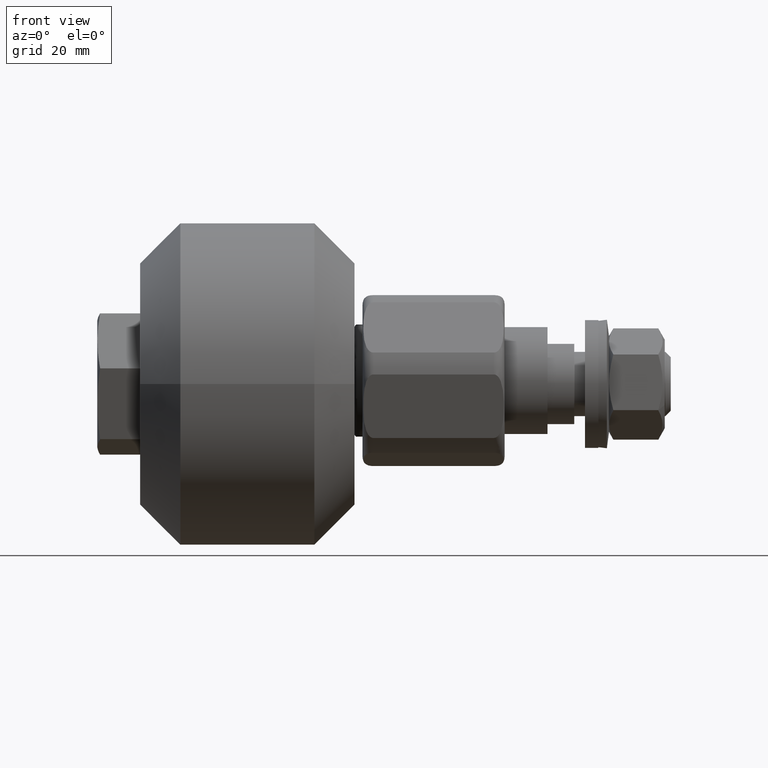
[diagram: clean part render]
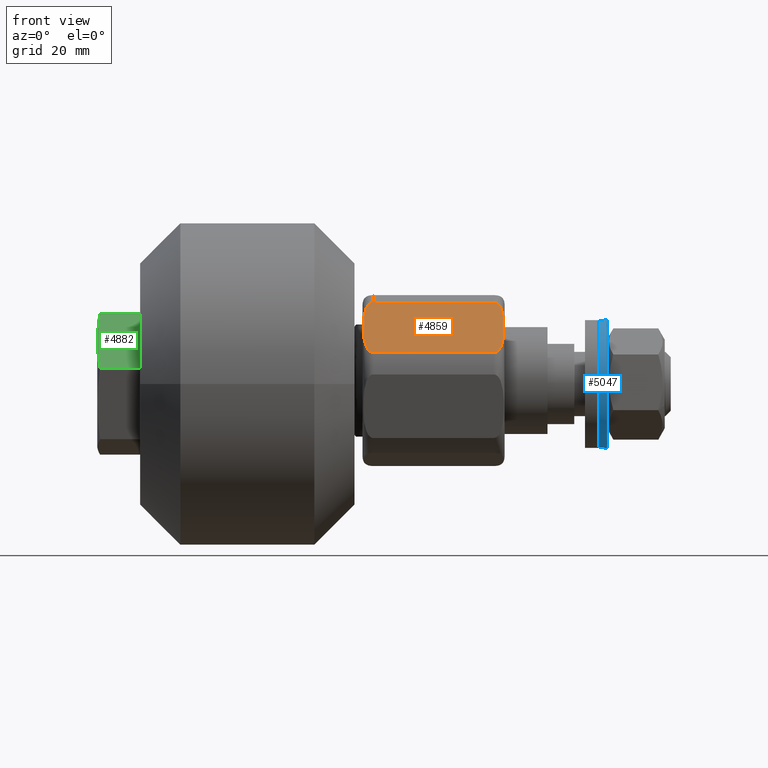
[diagram: same view with three faces highlighted in distinct colors, each labeled with its STEP entity id]
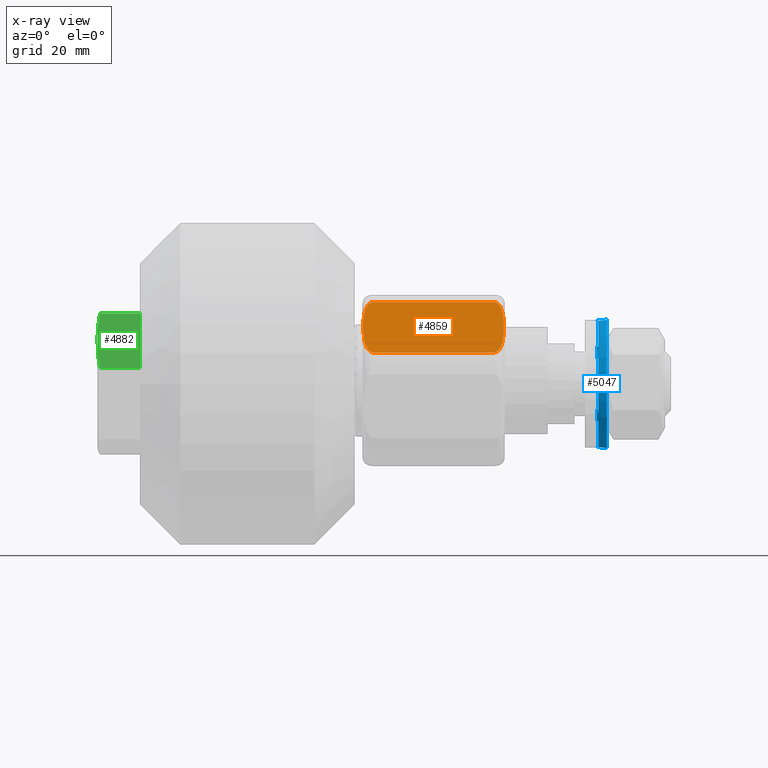
[diagram: x-ray of the same camera — body ghosted, the three highlighted faces saturated]
A machine part, front view with three faces highlighted in distinct colors.
The next image is the same camera in x-ray (body ghosted, the three faces saturated) — at least one of them is partly hidden behind the body in this view.
Their STEP definitions:

[orange] entity #4859 — the highlighted planar face has unit normal (0, -0.7499, 0.6615).
#195=B_SPLINE_CURVE_WITH_KNOTS('',3,(#7428,#7429,#7430,#7431,#7432,#7433,
#7434,#7435,#7436,#7437,#7438,#7439,#7440,#7441,#7442,#7443,#7444,#7445,
#7446,#7447,#7448,#7449,#7450),.UNSPECIFIED.,.F.,.F.,(4,2,2,2,2,3,2,2,2,
2,4),(-0.654455051765691,-0.615458381337923,-0.559182163310771,-0.457887403956306,
-0.228943701978153,0.,0.228943701978153,0.457887403956306,0.559182163310772,
0.615458381337924,0.654455051765692),.UNSPECIFIED.);
#201=B_SPLINE_CURVE_WITH_KNOTS('',3,(#7571,#7572,#7573,#7574,#7575,#7576,
#7577,#7578,#7579,#7580,#7581,#7582,#7583,#7584,#7585,#7586,#7587,#7588,
#7589,#7590,#7591,#7592),.UNSPECIFIED.,.F.,.F.,(4,2,2,2,2,2,2,2,2,2,4),
(0.654455051765692,0.693451722193459,0.749727940220611,0.851022699575077,
1.07996640155323,1.30891010353138,1.53785380550954,1.76679750748769,1.86809226684215,
1.92436848486931,1.96336515529707),.UNSPECIFIED.);
#384=PLANE('',#5378);
#603=FACE_OUTER_BOUND('',#881,.T.);
#881=EDGE_LOOP('',(#3409,#3410,#3411,#3412));
#1169=LINE('',#7704,#1459);
#1170=LINE('',#7706,#1460);
#1459=VECTOR('',#6036,10.);
#1460=VECTOR('',#6039,10.);
#2031=VERTEX_POINT('',#7425);
#2032=VERTEX_POINT('',#7427);
#2042=VERTEX_POINT('',#7568);
#2043=VERTEX_POINT('',#7570);
#2566=EDGE_CURVE('',#2032,#2031,#195,.T.);
#2577=EDGE_CURVE('',#2043,#2042,#201,.T.);
#2592=EDGE_CURVE('',#2042,#2032,#1169,.T.);
#2593=EDGE_CURVE('',#2031,#2043,#1170,.T.);
#3409=ORIENTED_EDGE('',*,*,#2566,.T.);
#3410=ORIENTED_EDGE('',*,*,#2593,.T.);
#3411=ORIENTED_EDGE('',*,*,#2577,.T.);
#3412=ORIENTED_EDGE('',*,*,#2592,.T.);
#4859=ADVANCED_FACE('',(#603),#384,.T.);
#5378=AXIS2_PLACEMENT_3D('',#7705,#6037,#6038);
#6036=DIRECTION('',(1.,0.,0.));
#6037=DIRECTION('center_axis',(0.,0.866025403784439,0.5));
#6038=DIRECTION('ref_axis',(0.,0.5,-0.866025403784439));
#6039=DIRECTION('',(-1.,0.,0.));
#7425=CARTESIAN_POINT('',(11.25,16.1153810567666,2.08734122634724));
#7427=CARTESIAN_POINT('',(11.25,9.86538105676658,12.9126587736527));
#7428=CARTESIAN_POINT('Ctrl Pts',(11.25,9.86538105676657,12.9126587736527));
#7429=CARTESIAN_POINT('Ctrl Pts',(11.3799889014259,9.86538105676657,12.9126587736527));
#7430=CARTESIAN_POINT('Ctrl Pts',(11.5301733976963,9.88645510449861,12.8761574522597));
#7431=CARTESIAN_POINT('Ctrl Pts',(11.8106276528386,9.96095361760969,12.747122242463));
#7432=CARTESIAN_POINT('Ctrl Pts',(11.9729148831963,10.0389521084763,12.6120248933684));
#7433=CARTESIAN_POINT('Ctrl Pts',(12.2949896343247,10.2464016996404,12.2527116614627));
#7434=CARTESIAN_POINT('Ctrl Pts',(12.4633942317916,10.4306637032622,11.9335605092853));
#7435=CARTESIAN_POINT('Ctrl Pts',(12.8226536595242,10.9509237372463,11.0324436972774));
#7436=CARTESIAN_POINT('Ctrl Pts',(12.9412026717376,11.360770993292,10.3225674264636));
#7437=CARTESIAN_POINT('Ctrl Pts',(13.083465251009,12.1896464723356,8.886912983612));
#7438=CARTESIAN_POINT('Ctrl Pts',(13.1040496217739,12.6088082201363,8.16090353983178));
#7439=CARTESIAN_POINT('Ctrl Pts',(13.1040496217739,12.9903810567666,7.49999999999999));
#7440=CARTESIAN_POINT('Ctrl Pts',(13.1040496217739,13.3719538933968,6.83909646016821));
#7441=CARTESIAN_POINT('Ctrl Pts',(13.083465251009,13.7911156411976,6.11308701638798));
#7442=CARTESIAN_POINT('Ctrl Pts',(12.9412026717376,14.6199911202412,4.67743257353643));
#7443=CARTESIAN_POINT('Ctrl Pts',(12.8226536595242,15.0298383762869,3.96755630272262));
#7444=CARTESIAN_POINT('Ctrl Pts',(12.4633942317916,15.550098410271,3.06643949071466));
#7445=CARTESIAN_POINT('Ctrl Pts',(12.2949896343247,15.7343604138928,2.74728833853725));
#7446=CARTESIAN_POINT('Ctrl Pts',(11.9729148831963,15.9418100050569,2.3879751066316));
#7447=CARTESIAN_POINT('Ctrl Pts',(11.8106276528386,16.0198084959235,2.25287775753699));
#7448=CARTESIAN_POINT('Ctrl Pts',(11.5301733976963,16.0943070090345,2.12384254774025));
#7449=CARTESIAN_POINT('Ctrl Pts',(11.3799889014259,16.1153810567666,2.08734122634723));
#7450=CARTESIAN_POINT('Ctrl Pts',(11.25,16.1153810567666,2.08734122634724));
#7568=CARTESIAN_POINT('',(-11.25,9.86538105676658,12.9126587736527));
#7570=CARTESIAN_POINT('',(-11.25,16.1153810567666,2.08734122634724));
#7571=CARTESIAN_POINT('Ctrl Pts',(-11.25,16.1153810567666,2.08734122634724));
#7572=CARTESIAN_POINT('Ctrl Pts',(-11.3799889014259,16.1153810567666,2.08734122634724));
#7573=CARTESIAN_POINT('Ctrl Pts',(-11.5301733976963,16.0943070090345,2.12384254774025));
#7574=CARTESIAN_POINT('Ctrl Pts',(-11.8106276528386,16.0198084959235,2.25287775753699));
#7575=CARTESIAN_POINT('Ctrl Pts',(-11.9729148831963,15.9418100050569,2.3879751066316));
#7576=CARTESIAN_POINT('Ctrl Pts',(-12.2949896343247,15.7343604138928,2.74728833853725));
#7577=CARTESIAN_POINT('Ctrl Pts',(-12.4633942317916,15.550098410271,3.06643949071466));
#7578=CARTESIAN_POINT('Ctrl Pts',(-12.8226536595242,15.0298383762869,3.96755630272262));
#7579=CARTESIAN_POINT('Ctrl Pts',(-12.9412026717376,14.6199911202412,4.67743257353643));
#7580=CARTESIAN_POINT('Ctrl Pts',(-13.083465251009,13.7911156411976,6.11308701638799));
#7581=CARTESIAN_POINT('Ctrl Pts',(-13.1040496217739,13.3719538933968,6.83909646016821));
#7582=CARTESIAN_POINT('Ctrl Pts',(-13.1040496217739,12.6088082201363,8.16090353983178));
#7583=CARTESIAN_POINT('Ctrl Pts',(-13.083465251009,12.1896464723356,8.886912983612));
#7584=CARTESIAN_POINT('Ctrl Pts',(-12.9412026717376,11.360770993292,10.3225674264636));
#7585=CARTESIAN_POINT('Ctrl Pts',(-12.8226536595242,10.9509237372463,11.0324436972774));
#7586=CARTESIAN_POINT('Ctrl Pts',(-12.4633942317916,10.4306637032622,11.9335605092853));
#7587=CARTESIAN_POINT('Ctrl Pts',(-12.2949896343247,10.2464016996404,12.2527116614627));
#7588=CARTESIAN_POINT('Ctrl Pts',(-11.9729148831963,10.0389521084763,12.6120248933684));
#7589=CARTESIAN_POINT('Ctrl Pts',(-11.8106276528386,9.9609536176097,12.747122242463));
#7590=CARTESIAN_POINT('Ctrl Pts',(-11.5301733976963,9.88645510449861,12.8761574522597));
#7591=CARTESIAN_POINT('Ctrl Pts',(-11.3799889014259,9.86538105676657,12.9126587736528));
#7592=CARTESIAN_POINT('Ctrl Pts',(-11.25,9.86538105676657,12.9126587736528));
#7704=CARTESIAN_POINT('',(-13.25,9.86538105676658,12.9126587736527));
#7705=CARTESIAN_POINT('Origin',(13.25,8.66025403784439,15.));
#7706=CARTESIAN_POINT('',(-13.25,16.1153810567666,2.08734122634724));

[blue] entity #5047 — the highlighted conical surface has half-angle 7.257 deg.
#54=ELLIPSE('',#5694,12.0500347161626,11.9519423524401);
#55=ELLIPSE('',#5698,12.0500347161628,11.9519423524398);
#56=ELLIPSE('',#5703,12.0500347161626,11.95194235244);
#57=ELLIPSE('',#5709,12.0500347161628,11.9519423524398);
#58=ELLIPSE('',#5710,12.0500347161628,11.9519423524398);
#59=ELLIPSE('',#5715,12.0500347161626,11.9519423524401);
#60=ELLIPSE('',#5720,12.0500347161626,11.9519423524401);
#791=FACE_OUTER_BOUND('',#1074,.T.);
#1074=EDGE_LOOP('',(#4433,#4434,#4435,#4436,#4437,#4438,#4439,#4440,#4441,
#4442,#4443,#4444,#4445,#4446,#4447,#4448,#4449,#4450,#4451,#4452,#4453,
#4454,#4455,#4456,#4457,#4458,#4459,#4460));
#1378=LINE('',#8810,#1668);
#1381=LINE('',#8821,#1671);
#1386=LINE('',#8837,#1676);
#1388=LINE('',#8846,#1678);
#1393=LINE('',#8862,#1683);
#1395=LINE('',#8871,#1685);
#1398=LINE('',#8882,#1688);
#1404=LINE('',#8924,#1694);
#1406=LINE('',#8936,#1696);
#1411=LINE('',#8959,#1701);
#1413=LINE('',#8969,#1703);
#1418=LINE('',#8992,#1708);
#1420=LINE('',#9000,#1710);
#1668=VECTOR('',#6873,10.);
#1671=VECTOR('',#6878,10.);
#1676=VECTOR('',#6889,10.);
#1678=VECTOR('',#6893,10.);
#1683=VECTOR('',#6904,10.);
#1685=VECTOR('',#6908,10.);
#1688=VECTOR('',#6913,10.);
#1694=VECTOR('',#6931,10.);
#1696=VECTOR('',#6941,10.);
#1701=VECTOR('',#6950,10.);
#1703=VECTOR('',#6958,10.);
#1708=VECTOR('',#6967,10.);
#1710=VECTOR('',#6975,11.8989467962201);
#1872=CIRCLE('',#5637,12.);
#1922=CIRCLE('',#5722,11.7978935924402);
#1923=CIRCLE('',#5723,11.7978935924402);
#1924=CIRCLE('',#5724,11.7978935924402);
#1925=CIRCLE('',#5725,11.7978935924402);
#1926=CIRCLE('',#5726,11.7978935924402);
#1927=CIRCLE('',#5727,11.7978935924402);
#2338=VERTEX_POINT('',#8732);
#2347=VERTEX_POINT('',#8808);
#2348=VERTEX_POINT('',#8809);
#2351=VERTEX_POINT('',#8819);
#2352=VERTEX_POINT('',#8820);
#2355=VERTEX_POINT('',#8830);
#2357=VERTEX_POINT('',#8836);
#2359=VERTEX_POINT('',#8844);
#2360=VERTEX_POINT('',#8845);
#2363=VERTEX_POINT('',#8855);
#2365=VERTEX_POINT('',#8861);
#2367=VERTEX_POINT('',#8869);
#2368=VERTEX_POINT('',#8870);
#2371=VERTEX_POINT('',#8880);
#2372=VERTEX_POINT('',#8881);
#2380=VERTEX_POINT('',#8922);
#2381=VERTEX_POINT('',#8923);
#2382=VERTEX_POINT('',#8930);
#2383=VERTEX_POINT('',#8934);
#2384=VERTEX_POINT('',#8935);
#2390=VERTEX_POINT('',#8957);
#2391=VERTEX_POINT('',#8958);
#2392=VERTEX_POINT('',#8967);
#2393=VERTEX_POINT('',#8968);
#2399=VERTEX_POINT('',#8990);
#2400=VERTEX_POINT('',#8991);
#2985=EDGE_CURVE('',#2338,#2338,#1872,.T.);
#3043=EDGE_CURVE('',#2347,#2348,#1378,.T.);
#3047=EDGE_CURVE('',#2351,#2352,#1381,.T.);
#3051=EDGE_CURVE('',#2352,#2355,#54,.T.);
#3054=EDGE_CURVE('',#2355,#2357,#1386,.T.);
#3057=EDGE_CURVE('',#2359,#2360,#1388,.T.);
#3061=EDGE_CURVE('',#2360,#2363,#55,.T.);
#3064=EDGE_CURVE('',#2363,#2365,#1393,.T.);
#3067=EDGE_CURVE('',#2367,#2368,#1395,.T.);
#3071=EDGE_CURVE('',#2371,#2372,#1398,.T.);
#3075=EDGE_CURVE('',#2368,#2371,#56,.T.);
#3085=EDGE_CURVE('',#2380,#2381,#1404,.T.);
#3088=EDGE_CURVE('',#2381,#2382,#57,.T.);
#3089=EDGE_CURVE('',#2382,#2347,#58,.T.);
#3090=EDGE_CURVE('',#2383,#2384,#1406,.T.);
#3098=EDGE_CURVE('',#2390,#2391,#1411,.T.);
#3101=EDGE_CURVE('',#2391,#2383,#59,.T.);
#3102=EDGE_CURVE('',#2392,#2393,#1413,.T.);
#3110=EDGE_CURVE('',#2399,#2400,#1418,.T.);
#3113=EDGE_CURVE('',#2400,#2392,#60,.T.);
#3114=EDGE_CURVE('',#2382,#2338,#1420,.T.);
#3115=EDGE_CURVE('',#2384,#2380,#1922,.T.);
#3116=EDGE_CURVE('',#2393,#2390,#1923,.T.);
#3117=EDGE_CURVE('',#2372,#2399,#1924,.T.);
#3118=EDGE_CURVE('',#2365,#2367,#1925,.T.);
#3119=EDGE_CURVE('',#2357,#2359,#1926,.T.);
#3120=EDGE_CURVE('',#2348,#2351,#1927,.T.);
#4433=ORIENTED_EDGE('',*,*,#3043,.F.);
#4434=ORIENTED_EDGE('',*,*,#3089,.F.);
#4435=ORIENTED_EDGE('',*,*,#3114,.T.);
#4436=ORIENTED_EDGE('',*,*,#2985,.T.);
#4437=ORIENTED_EDGE('',*,*,#3114,.F.);
#4438=ORIENTED_EDGE('',*,*,#3088,.F.);
#4439=ORIENTED_EDGE('',*,*,#3085,.F.);
#4440=ORIENTED_EDGE('',*,*,#3115,.F.);
#4441=ORIENTED_EDGE('',*,*,#3090,.F.);
#4442=ORIENTED_EDGE('',*,*,#3101,.F.);
#4443=ORIENTED_EDGE('',*,*,#3098,.F.);
#4444=ORIENTED_EDGE('',*,*,#3116,.F.);
#4445=ORIENTED_EDGE('',*,*,#3102,.F.);
#4446=ORIENTED_EDGE('',*,*,#3113,.F.);
#4447=ORIENTED_EDGE('',*,*,#3110,.F.);
#4448=ORIENTED_EDGE('',*,*,#3117,.F.);
#4449=ORIENTED_EDGE('',*,*,#3071,.F.);
#4450=ORIENTED_EDGE('',*,*,#3075,.F.);
#4451=ORIENTED_EDGE('',*,*,#3067,.F.);
#4452=ORIENTED_EDGE('',*,*,#3118,.F.);
#4453=ORIENTED_EDGE('',*,*,#3064,.F.);
#4454=ORIENTED_EDGE('',*,*,#3061,.F.);
#4455=ORIENTED_EDGE('',*,*,#3057,.F.);
#4456=ORIENTED_EDGE('',*,*,#3119,.F.);
#4457=ORIENTED_EDGE('',*,*,#3054,.F.);
#4458=ORIENTED_EDGE('',*,*,#3051,.F.);
#4459=ORIENTED_EDGE('',*,*,#3047,.F.);
#4460=ORIENTED_EDGE('',*,*,#3120,.F.);
#4825=CONICAL_SURFACE('',#5721,11.8989467962201,0.126654854528353);
#5047=ADVANCED_FACE('',(#791),#4825,.T.);
#5637=AXIS2_PLACEMENT_3D('',#8733,#6757,#6758);
#5694=AXIS2_PLACEMENT_3D('',#8831,#6883,#6884);
#5698=AXIS2_PLACEMENT_3D('',#8856,#6898,#6899);
#5703=AXIS2_PLACEMENT_3D('',#8891,#6918,#6919);
#5709=AXIS2_PLACEMENT_3D('',#8931,#6935,#6936);
#5710=AXIS2_PLACEMENT_3D('',#8932,#6937,#6938);
#5715=AXIS2_PLACEMENT_3D('',#8965,#6954,#6955);
#5720=AXIS2_PLACEMENT_3D('',#8998,#6971,#6972);
#5721=AXIS2_PLACEMENT_3D('',#8999,#6973,#6974);
#5722=AXIS2_PLACEMENT_3D('',#9001,#6976,#6977);
#5723=AXIS2_PLACEMENT_3D('',#9002,#6978,#6979);
#5724=AXIS2_PLACEMENT_3D('',#9003,#6980,#6981);
#5725=AXIS2_PLACEMENT_3D('',#9004,#6982,#6983);
#5726=AXIS2_PLACEMENT_3D('',#9005,#6984,#6985);
#5727=AXIS2_PLACEMENT_3D('',#9006,#6986,#6987);
#6757=DIRECTION('center_axis',(-3.74541198058103E-31,-1.,0.));
#6758=DIRECTION('ref_axis',(1.,0.,0.));
#6873=DIRECTION('',(-0.126766278803938,0.991932613920019,3.27344399564075E-16));
#6878=DIRECTION('',(0.063383139401969,-0.991932613920019,0.109782817787433));
#6883=DIRECTION('center_axis',(0.0631582523624454,-0.991989990188453,0.109393302009012));
#6884=DIRECTION('ref_axis',(0.495994995094475,0.126316504724891,0.859088531802933));
#6889=DIRECTION('',(-0.0633831394019704,0.991932613920019,-0.109782817787433));
#6893=DIRECTION('',(-0.063383139401973,-0.991932613920019,0.109782817787433));
#6898=DIRECTION('center_axis',(-0.0631582523624453,-0.991989990188453,0.109393302009013));
#6899=DIRECTION('ref_axis',(-0.49599499509339,0.126316504724891,0.859088531803559));
#6904=DIRECTION('',(0.0633831394019717,0.991932613920019,-0.109782817787433));
#6908=DIRECTION('',(-0.126766278803938,-0.991932613920019,0.));
#6913=DIRECTION('',(0.126766278803938,0.991932613920019,0.));
#6918=DIRECTION('center_axis',(-0.126316504724891,-0.991989990188453,0.));
#6919=DIRECTION('ref_axis',(-0.991989990188453,0.126316504724891,-1.29857027823347E-14));
#6931=DIRECTION('',(0.126766278803938,-0.991932613920019,0.));
#6935=DIRECTION('center_axis',(0.126316504724891,-0.991989990188453,-2.08166817117217E-17));
#6936=DIRECTION('ref_axis',(-0.991989990188453,-0.126316504724891,1.06095855227719E-15));
#6937=DIRECTION('center_axis',(0.126316504724891,-0.991989990188453,-2.08166817117217E-17));
#6938=DIRECTION('ref_axis',(-0.991989990188453,-0.126316504724891,1.06095855227719E-15));
#6941=DIRECTION('',(-0.0633831394019717,0.991932613920019,0.109782817787433));
#6950=DIRECTION('',(0.0633831394019704,-0.991932613920019,-0.109782817787433));
#6954=DIRECTION('center_axis',(0.0631582523624453,-0.991989990188453,-0.109393302009012));
#6955=DIRECTION('ref_axis',(-0.495994995094449,-0.126316504724891,0.859088531802948));
#6958=DIRECTION('',(0.0633831394019678,0.991932613920019,0.109782817787433));
#6967=DIRECTION('',(-0.0633831394019717,-0.991932613920019,-0.109782817787433));
#6971=DIRECTION('center_axis',(-0.0631582523624454,-0.991989990188453,-0.109393302009012));
#6972=DIRECTION('ref_axis',(0.495994995094502,-0.126316504724891,0.859088531802917));
#6973=DIRECTION('center_axis',(3.74541198058103E-31,1.,0.));
#6974=DIRECTION('ref_axis',(1.,0.,0.));
#6975=DIRECTION('',(-0.12631650472489,0.991989990188453,-1.54693103190818E-17));
#6976=DIRECTION('center_axis',(-3.74541198058103E-31,-1.,0.));
#6977=DIRECTION('ref_axis',(1.,0.,0.));
#6978=DIRECTION('center_axis',(-3.74541198058103E-31,-1.,0.));
#6979=DIRECTION('ref_axis',(1.,0.,0.));
#6980=DIRECTION('center_axis',(-3.74541198058103E-31,-1.,0.));
#6981=DIRECTION('ref_axis',(1.,0.,0.));
#6982=DIRECTION('center_axis',(-3.74541198058103E-31,-1.,0.));
#6983=DIRECTION('ref_axis',(1.,0.,0.));
#6984=DIRECTION('center_axis',(-3.74541198058103E-31,-1.,0.));
#6985=DIRECTION('ref_axis',(1.,0.,0.));
#6986=DIRECTION('center_axis',(-3.74541198058103E-31,-1.,0.));
#6987=DIRECTION('ref_axis',(1.,0.,0.));
#8732=CARTESIAN_POINT('',(-12.,1.88718398430152,-1.46957615897682E-15));
#8733=CARTESIAN_POINT('Origin',(7.06828150436358E-31,1.88718398430152,0.));
#8808=CARTESIAN_POINT('',(-11.7177794650812,0.00533707720151834,-0.999999999999998));
#8809=CARTESIAN_POINT('',(-11.755436751501,0.3,-0.999999999999999));
#8810=CARTESIAN_POINT('',(-11.7439687146008,0.210265248984933,-0.999999999999998));
#8819=CARTESIAN_POINT('',(-6.74374377953496,0.3,-9.6805068593811));
#8820=CARTESIAN_POINT('',(-6.72491513632504,0.00533707720151806,-9.64789469270394));
#8821=CARTESIAN_POINT('',(-6.73800976108482,0.210265248984933,-9.67057524809393));
#8830=CARTESIAN_POINT('',(-4.99286432875616,0.00533707720151799,-10.6478946927039));
#8831=CARTESIAN_POINT('Origin',(0.0969105843744233,1.52211826715925,0.167854055927694));
#8836=CARTESIAN_POINT('',(-5.01169297196608,0.3,-10.6805068593811));
#8837=CARTESIAN_POINT('',(-5.00595895351594,0.210265248984933,-10.6705752480939));
#8844=CARTESIAN_POINT('',(5.01169297196607,0.3,-10.6805068593811));
#8845=CARTESIAN_POINT('',(4.99286432875615,0.00533707720151832,-10.6478946927039));
#8846=CARTESIAN_POINT('',(5.00595895351593,0.210265248984933,-10.6705752480939));
#8855=CARTESIAN_POINT('',(6.72491513632502,0.00533707720151821,-9.64789469270394));
#8856=CARTESIAN_POINT('Origin',(-0.0969105843744233,1.52211826715925,0.167854055927692));
#8861=CARTESIAN_POINT('',(6.74374377953495,0.3,-9.68050685938111));
#8862=CARTESIAN_POINT('',(6.73800976108481,0.210265248984933,-9.67057524809394));
#8869=CARTESIAN_POINT('',(11.755436751501,0.3,-1.));
#8870=CARTESIAN_POINT('',(11.7177794650812,0.00533707720151832,-1.));
#8871=CARTESIAN_POINT('',(11.7439687146008,0.210265248984933,-1.));
#8880=CARTESIAN_POINT('',(11.7177794650812,0.00533707720151832,1.));
#8881=CARTESIAN_POINT('',(11.755436751501,0.3,1.));
#8882=CARTESIAN_POINT('',(11.7439687146008,0.210265248984933,1.));
#8891=CARTESIAN_POINT('Origin',(-0.193821168748849,1.52211826715925,-2.22044604925031E-15));
#8922=CARTESIAN_POINT('',(-11.755436751501,0.3,1.));
#8923=CARTESIAN_POINT('',(-11.7177794650812,0.00533707720151832,1.));
#8924=CARTESIAN_POINT('',(-11.7439687146008,0.210265248984933,1.));
#8930=CARTESIAN_POINT('',(-11.759692651108,-2.47024622979097E-14,-1.44014699641361E-15));
#8931=CARTESIAN_POINT('Origin',(0.193821168748849,1.52211826715925,0.));
#8932=CARTESIAN_POINT('Origin',(0.193821168748849,1.52211826715925,0.));
#8934=CARTESIAN_POINT('',(-6.72491513632503,0.00533707720151816,9.64789469270394));
#8935=CARTESIAN_POINT('',(-6.74374377953495,0.3,9.68050685938111));
#8936=CARTESIAN_POINT('',(-6.73800976108481,0.210265248984933,9.67057524809393));
#8957=CARTESIAN_POINT('',(-5.01169297196607,0.3,10.6805068593811));
#8958=CARTESIAN_POINT('',(-4.99286432875615,0.00533707720151813,10.6478946927039));
#8959=CARTESIAN_POINT('',(-5.00595895351594,0.210265248984933,10.6705752480939));
#8965=CARTESIAN_POINT('Origin',(0.0969105843744256,1.52211826715925,-0.167854055927692));
#8967=CARTESIAN_POINT('',(4.99286432875616,0.00533707720151828,10.6478946927039));
#8968=CARTESIAN_POINT('',(5.01169297196608,0.3,10.6805068593811));
#8969=CARTESIAN_POINT('',(5.00595895351594,0.210265248984933,10.6705752480939));
#8990=CARTESIAN_POINT('',(6.74374377953495,0.3,9.68050685938111));
#8991=CARTESIAN_POINT('',(6.72491513632503,0.00533707720151806,9.64789469270394));
#8992=CARTESIAN_POINT('',(6.73800976108482,0.210265248984933,9.67057524809393));
#8998=CARTESIAN_POINT('Origin',(-0.0969105843744233,1.52211826715925,-0.167854055927692));
#8999=CARTESIAN_POINT('Origin',(4.09595254926894E-31,1.09359199215076,0.));
#9000=CARTESIAN_POINT('',(-11.8989467962201,1.09359199215076,-1.45720071072156E-15));
#9001=CARTESIAN_POINT('Origin',(1.12362359417431E-31,0.3,0.));
#9002=CARTESIAN_POINT('Origin',(1.12362359417431E-31,0.3,0.));
#9003=CARTESIAN_POINT('Origin',(1.12362359417431E-31,0.3,0.));
#9004=CARTESIAN_POINT('Origin',(1.12362359417431E-31,0.3,0.));
#9005=CARTESIAN_POINT('Origin',(1.12362359417431E-31,0.3,0.));
#9006=CARTESIAN_POINT('Origin',(1.12362359417431E-31,0.3,0.));

[green] entity #4882 — the highlighted planar face has unit normal (-0, -0.7417, 0.6707).
#61=(
BOUNDED_CURVE()
B_SPLINE_CURVE(2,(#7737,#7738,#7739),.UNSPECIFIED.,.F.,.F.)
B_SPLINE_CURVE_WITH_KNOTS((3,3),(0.,1.38920738919512),.UNSPECIFIED.)
CURVE()
GEOMETRIC_REPRESENTATION_ITEM()
RATIONAL_B_SPLINE_CURVE((1.,1.15470053837925,1.))
REPRESENTATION_ITEM('')
);
#397=PLANE('',#5410);
#626=FACE_OUTER_BOUND('',#908,.T.);
#908=EDGE_LOOP('',(#3497,#3498,#3499,#3500));
#1186=LINE('',#7774,#1476);
#1191=LINE('',#7796,#1481);
#1192=LINE('',#7797,#1482);
#1476=VECTOR('',#6097,10.);
#1481=VECTOR('',#6124,10.);
#1482=VECTOR('',#6125,10.);
#2056=VERTEX_POINT('',#7735);
#2057=VERTEX_POINT('',#7736);
#2066=VERTEX_POINT('',#7773);
#2072=VERTEX_POINT('',#7795);
#2605=EDGE_CURVE('',#2056,#2057,#61,.T.);
#2618=EDGE_CURVE('',#2066,#2056,#1186,.T.);
#2628=EDGE_CURVE('',#2072,#2057,#1191,.T.);
#2629=EDGE_CURVE('',#2066,#2072,#1192,.T.);
#3497=ORIENTED_EDGE('',*,*,#2605,.T.);
#3498=ORIENTED_EDGE('',*,*,#2628,.F.);
#3499=ORIENTED_EDGE('',*,*,#2629,.F.);
#3500=ORIENTED_EDGE('',*,*,#2618,.T.);
#4882=ADVANCED_FACE('',(#626),#397,.T.);
#5410=AXIS2_PLACEMENT_3D('',#7794,#6122,#6123);
#6097=DIRECTION('',(0.,0.,1.));
#6122=DIRECTION('center_axis',(0.5,-0.866025403784439,0.));
#6123=DIRECTION('ref_axis',(0.866025403784439,0.5,0.));
#6124=DIRECTION('',(0.,0.,1.));
#6125=DIRECTION('',(-0.866025403784439,-0.5,0.));
#7735=CARTESIAN_POINT('',(12.,-6.92820323027551,7.46410161513776));
#7736=CARTESIAN_POINT('',(-4.44089209850063E-15,-13.856406460551,7.46410161513776));
#7737=CARTESIAN_POINT('Ctrl Pts',(12.,-6.92820323027551,7.46410161513776));
#7738=CARTESIAN_POINT('Ctrl Pts',(6.,-10.3923048454133,8.39230484541327));
#7739=CARTESIAN_POINT('Ctrl Pts',(-7.17947190217064E-15,-13.856406460551,
7.46410161513776));
#7773=CARTESIAN_POINT('',(12.,-6.92820323027551,0.));
#7774=CARTESIAN_POINT('',(12.,-6.92820323027551,0.));
#7794=CARTESIAN_POINT('Origin',(-8.88178419700125E-15,-13.856406460551,
0.));
#7795=CARTESIAN_POINT('',(-5.82867087928207E-15,-13.856406460551,0.));
#7796=CARTESIAN_POINT('',(-5.82867087928207E-15,-13.856406460551,0.));
#7797=CARTESIAN_POINT('',(12.,-6.92820323027551,0.));